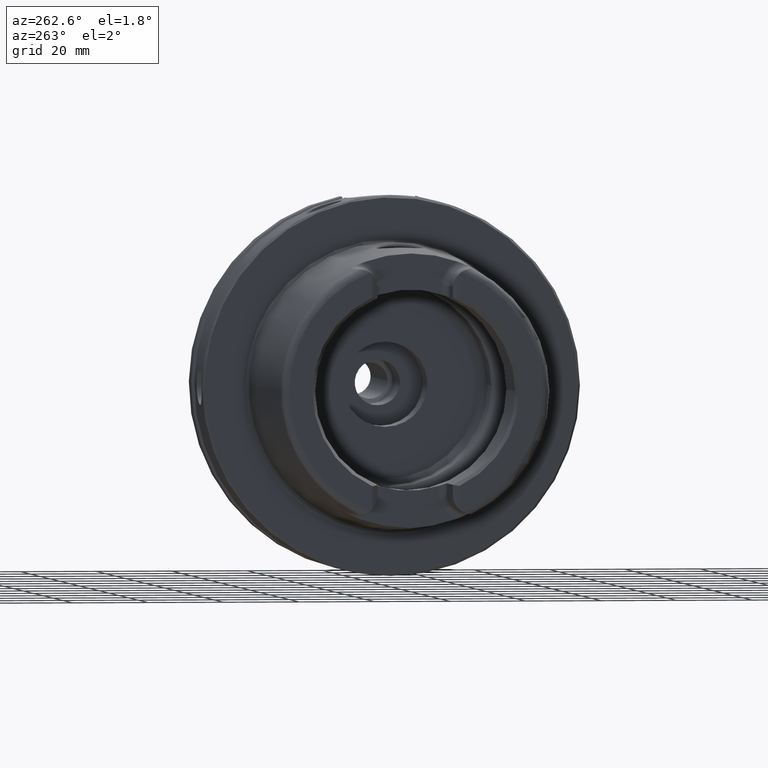
[diagram: clean part render]
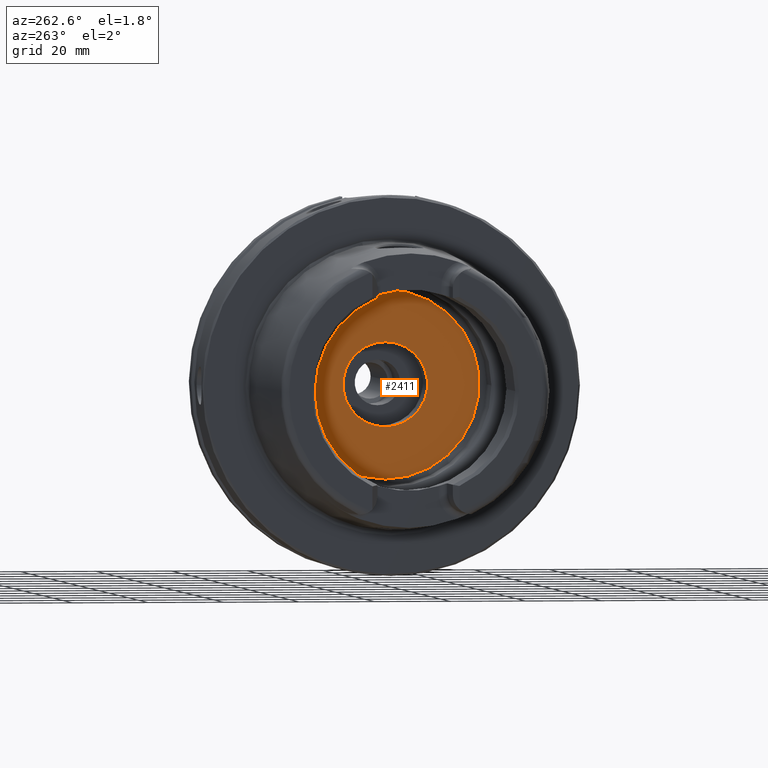
[diagram: same view with one face highlighted and labeled with its STEP entity id]
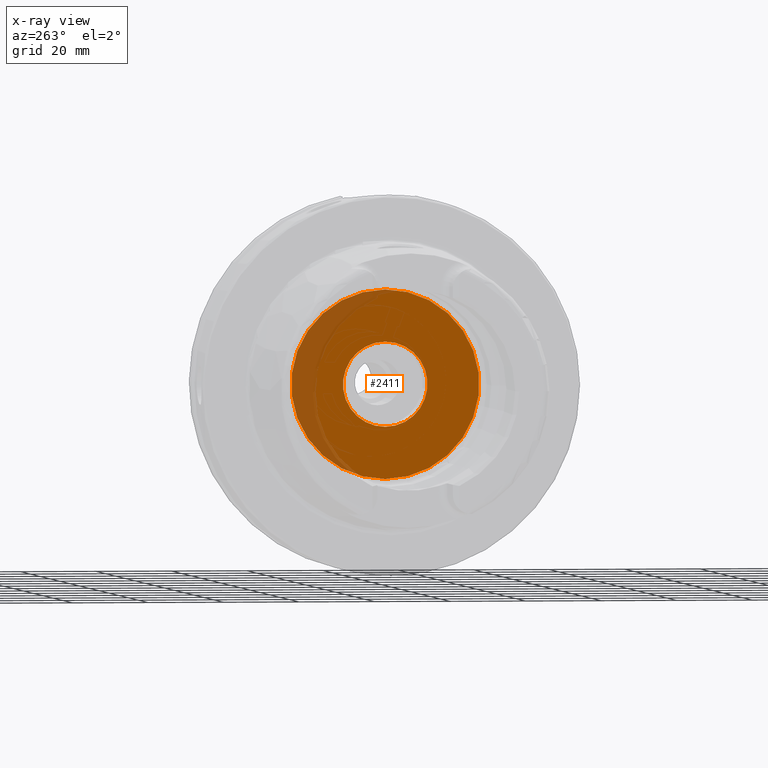
[diagram: x-ray of the same camera — body ghosted, the highlighted face saturated]
A machine part, auxiliary view. The second image highlights one B-rep face of the part: STEP entity #2411.
The next image is the same camera in x-ray: the body ghosted, the highlighted face saturated — about 19% of this face is hidden behind the body in this view.
In plain terms, the highlighted planar face has unit normal (1, 0, 0).
Its self-contained STEP definition (entity closure, byte-faithful):
#455=FACE_BOUND('',#736,.T.);
#583=FACE_OUTER_BOUND('',#735,.T.);
#735=EDGE_LOOP('',(#2176));
#736=EDGE_LOOP('',(#2177));
#878=CIRCLE('',#2695,11.188101);
#885=CIRCLE('',#2707,24.9);
#1131=VERTEX_POINT('',#5346);
#1137=VERTEX_POINT('',#5366);
#1482=EDGE_CURVE('',#1131,#1131,#878,.T.);
#1491=EDGE_CURVE('',#1137,#1137,#885,.T.);
#2176=ORIENTED_EDGE('',*,*,#1491,.T.);
#2177=ORIENTED_EDGE('',*,*,#1482,.T.);
#2291=PLANE('',#2706);
#2411=ADVANCED_FACE('',(#583,#455),#2291,.F.);
#2695=AXIS2_PLACEMENT_3D('',#5347,#3344,#3345);
#2706=AXIS2_PLACEMENT_3D('',#5365,#3368,#3369);
#2707=AXIS2_PLACEMENT_3D('',#5367,#3370,#3371);
#3344=DIRECTION('center_axis',(1.,0.,0.));
#3345=DIRECTION('ref_axis',(0.,0.,1.));
#3368=DIRECTION('center_axis',(1.,0.,0.));
#3369=DIRECTION('ref_axis',(0.,0.,-1.));
#3370=DIRECTION('center_axis',(-1.,0.,0.));
#3371=DIRECTION('ref_axis',(0.,0.,1.));
#5346=CARTESIAN_POINT('',(12.5,-1.37014720781873E-15,-11.188101));
#5347=CARTESIAN_POINT('Origin',(12.5,0.,0.));
#5365=CARTESIAN_POINT('Origin',(12.5,24.9,0.));
#5366=CARTESIAN_POINT('',(12.5,-3.04937052987691E-15,-24.9));
#5367=CARTESIAN_POINT('Origin',(12.5,0.,0.));